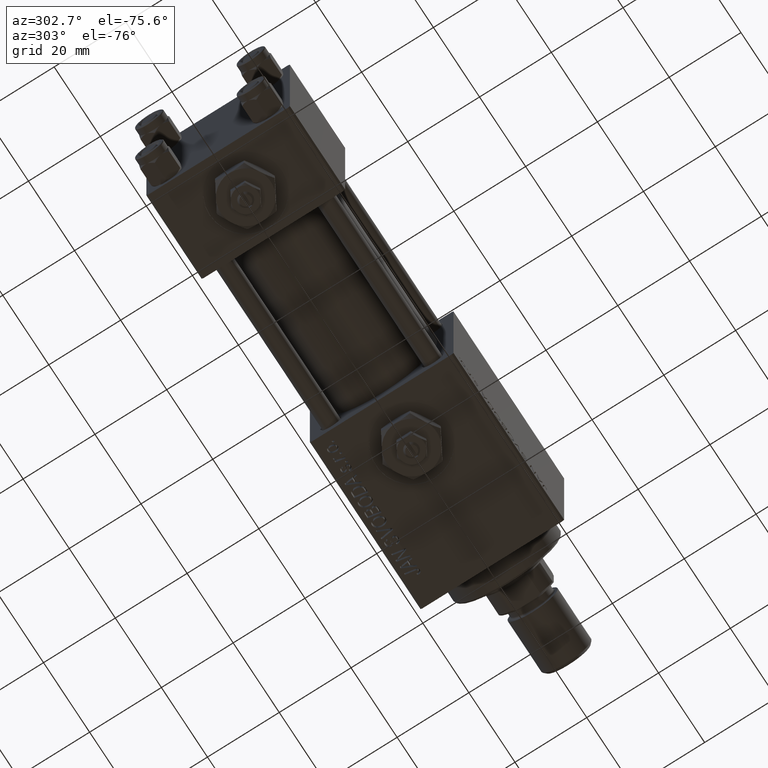
[diagram: clean part render]
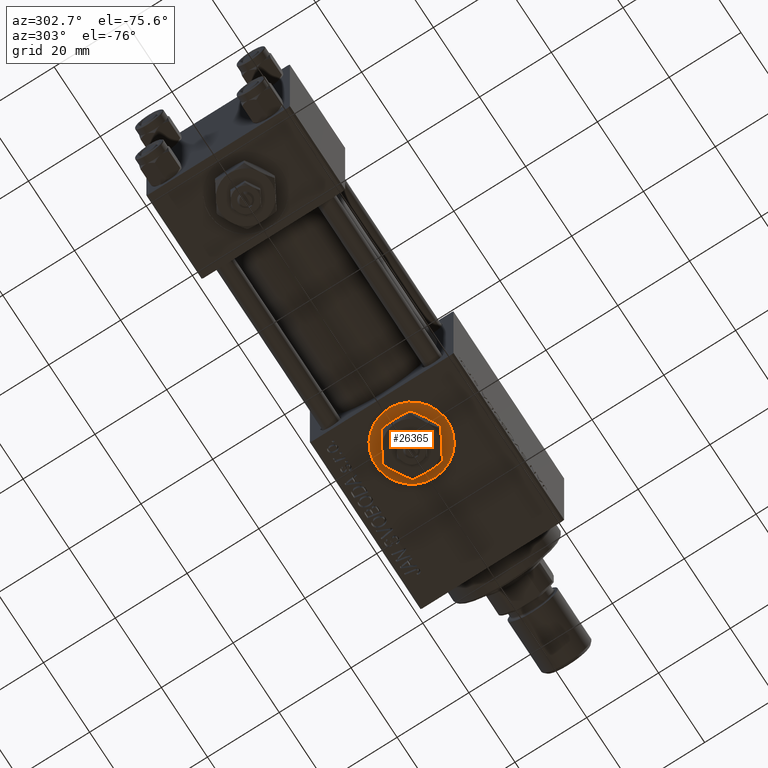
[diagram: same view with one face highlighted and labeled with its STEP entity id]
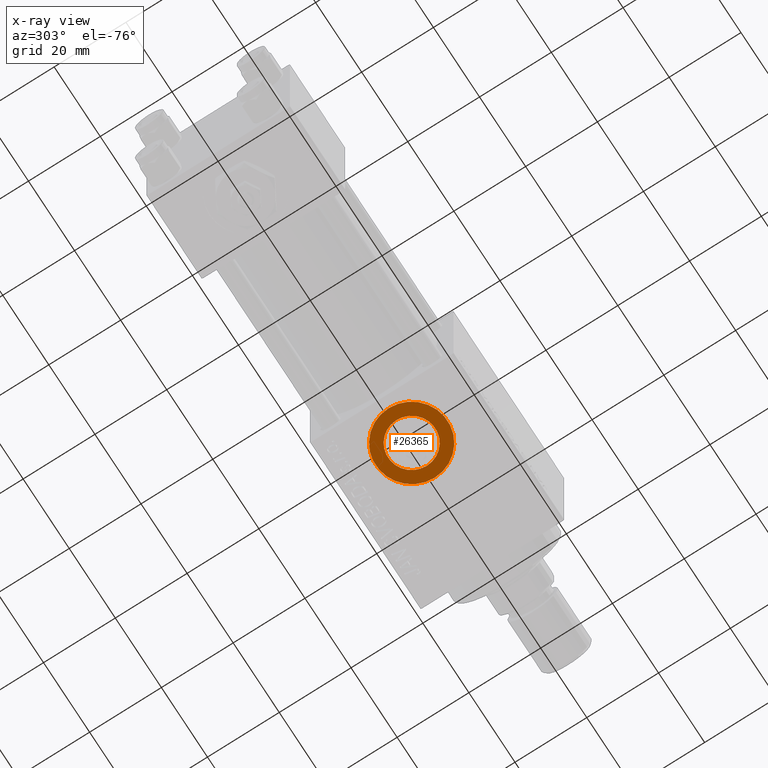
[diagram: x-ray of the same camera — body ghosted, the highlighted face saturated]
A machine part, auxiliary view. The second image highlights one B-rep face of the part: STEP entity #26365.
The next image is the same camera in x-ray: the body ghosted, the highlighted face saturated — about 0% of this face is hidden behind the body in this view.
In plain terms, the highlighted planar face has unit normal (0, 0, -1).
Its self-contained STEP definition (entity closure, byte-faithful):
#1471 = DIRECTION ( 'NONE',  ( -1.000000000000000000, 0.000000000000000000, 0.000000000000000000 ) ) ;
#3081 = AXIS2_PLACEMENT_3D ( 'NONE', #23365, #6362, #47040 ) ;
#5259 = ORIENTED_EDGE ( 'NONE', *, *, #34372, .F. ) ;
#6198 = EDGE_CURVE ( 'NONE', #6862, #51655, #27746, .T. ) ;
#6362 = DIRECTION ( 'NONE',  ( 0.000000000000000000, 0.000000000000000000, -1.000000000000000000 ) ) ;
#6862 = VERTEX_POINT ( 'NONE', #19098 ) ;
#7074 = DIRECTION ( 'NONE',  ( -1.000000000000000000, 0.000000000000000000, 0.000000000000000000 ) ) ;
#7513 = ORIENTED_EDGE ( 'NONE', *, *, #31462, .F. ) ;
#7768 = CIRCLE ( 'NONE', #32376, 10.00000000000000888 ) ;
#9267 = EDGE_LOOP ( 'NONE', ( #45586, #45299 ) ) ;
#12698 = CARTESIAN_POINT ( 'NONE',  ( 84.00000000000000000, 0.000000000000000000, -19.80000000000000071 ) ) ;
#13173 = DIRECTION ( 'NONE',  ( 0.000000000000000000, 0.000000000000000000, -1.000000000000000000 ) ) ;
#14285 = AXIS2_PLACEMENT_3D ( 'NONE', #33878, #13173, #1471 ) ;
#14802 = CARTESIAN_POINT ( 'NONE',  ( 94.00000000000001421, 1.224646799147354440E-15, -19.80000000000000071 ) ) ;
#19098 = CARTESIAN_POINT ( 'NONE',  ( 74.00000000000000000, 0.000000000000000000, -19.80000000000000071 ) ) ;
#21029 = DIRECTION ( 'NONE',  ( 0.000000000000000000, 0.000000000000000000, -1.000000000000000000 ) ) ;
#21064 = CARTESIAN_POINT ( 'NONE',  ( 77.42000000000000171, 0.000000000000000000, -19.80000000000000071 ) ) ;
#21895 = CIRCLE ( 'NONE', #14285, 6.580000000000002736 ) ;
#23365 = CARTESIAN_POINT ( 'NONE',  ( 84.00000000000000000, 0.000000000000000000, -19.80000000000000071 ) ) ;
#23515 = CIRCLE ( 'NONE', #25211, 6.580000000000002736 ) ;
#25211 = AXIS2_PLACEMENT_3D ( 'NONE', #12698, #28893, #44593 ) ;
#25790 = VERTEX_POINT ( 'NONE', #21064 ) ;
#25974 = CARTESIAN_POINT ( 'NONE',  ( 90.58000000000001251, 8.058175938389587461E-16, -19.80000000000000071 ) ) ;
#26081 = EDGE_LOOP ( 'NONE', ( #7513, #5259 ) ) ;
#26365 = ADVANCED_FACE ( 'NONE', ( #26569, #30807 ), #31610, .T. ) ;
#26569 = FACE_BOUND ( 'NONE', #26081, .T. ) ;
#27522 = CARTESIAN_POINT ( 'NONE',  ( 84.00000000000000000, 0.000000000000000000, -19.80000000000000071 ) ) ;
#27746 = CIRCLE ( 'NONE', #38784, 10.00000000000000888 ) ;
#28893 = DIRECTION ( 'NONE',  ( 0.000000000000000000, 0.000000000000000000, -1.000000000000000000 ) ) ;
#30807 = FACE_OUTER_BOUND ( 'NONE', #9267, .T. ) ;
#31462 = EDGE_CURVE ( 'NONE', #25790, #36436, #23515, .T. ) ;
#31610 = PLANE ( 'NONE',  #3081 ) ;
#32376 = AXIS2_PLACEMENT_3D ( 'NONE', #27522, #43209, #7074 ) ;
#33878 = CARTESIAN_POINT ( 'NONE',  ( 84.00000000000000000, 0.000000000000000000, -19.80000000000000071 ) ) ;
#34372 = EDGE_CURVE ( 'NONE', #36436, #25790, #21895, .T. ) ;
#36436 = VERTEX_POINT ( 'NONE', #25974 ) ;
#38784 = AXIS2_PLACEMENT_3D ( 'NONE', #40703, #21029, #49720 ) ;
#40703 = CARTESIAN_POINT ( 'NONE',  ( 84.00000000000000000, 0.000000000000000000, -19.80000000000000071 ) ) ;
#41835 = EDGE_CURVE ( 'NONE', #51655, #6862, #7768, .T. ) ;
#43209 = DIRECTION ( 'NONE',  ( 0.000000000000000000, 0.000000000000000000, -1.000000000000000000 ) ) ;
#44593 = DIRECTION ( 'NONE',  ( -1.000000000000000000, 0.000000000000000000, 0.000000000000000000 ) ) ;
#45299 = ORIENTED_EDGE ( 'NONE', *, *, #41835, .T. ) ;
#45586 = ORIENTED_EDGE ( 'NONE', *, *, #6198, .T. ) ;
#47040 = DIRECTION ( 'NONE',  ( -1.000000000000000000, 0.000000000000000000, -0.000000000000000000 ) ) ;
#49720 = DIRECTION ( 'NONE',  ( -1.000000000000000000, 0.000000000000000000, 0.000000000000000000 ) ) ;
#51655 = VERTEX_POINT ( 'NONE', #14802 ) ;